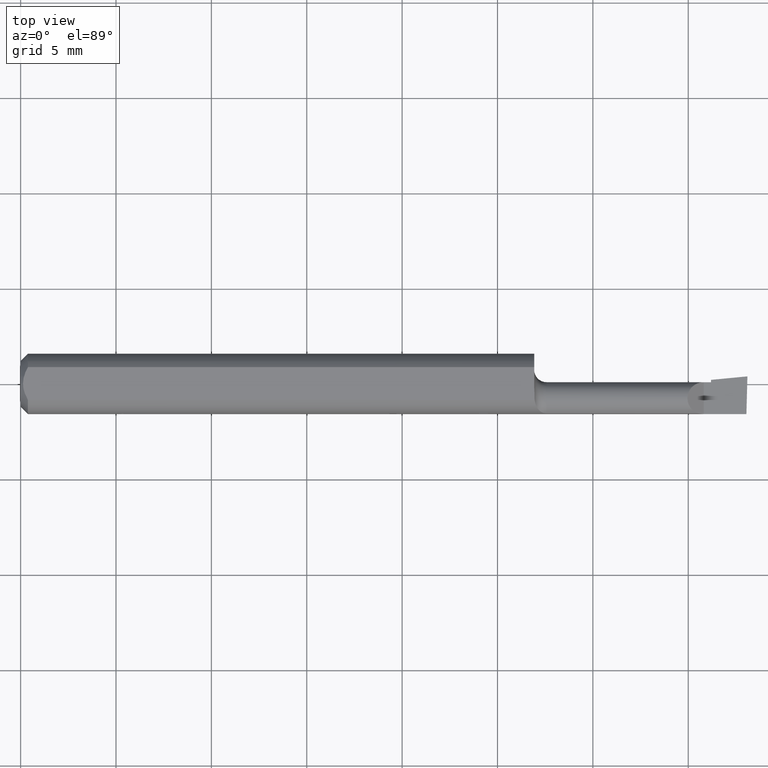
[diagram: clean part render]
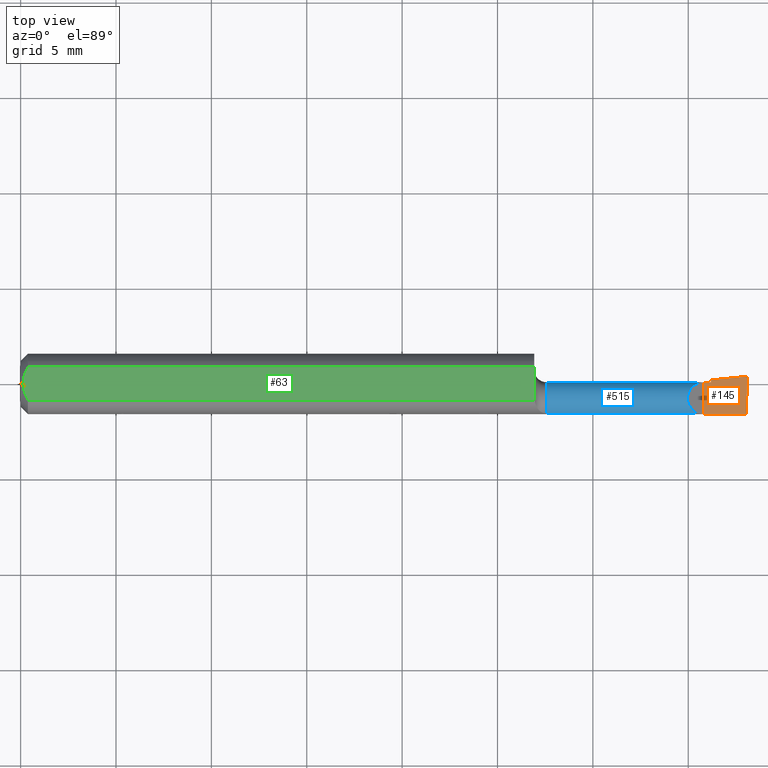
[diagram: same view with three faces highlighted in distinct colors, each labeled with its STEP entity id]
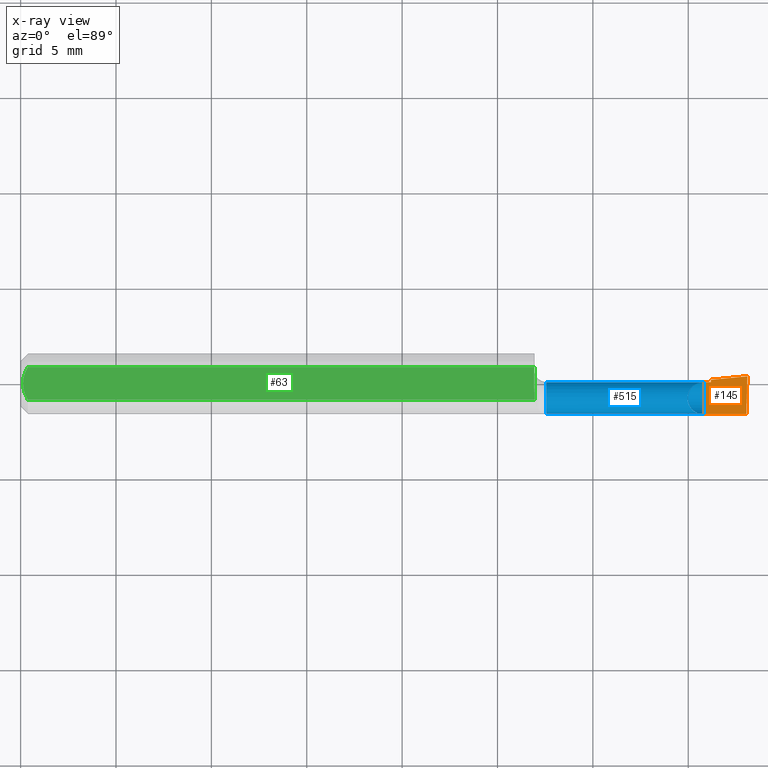
[diagram: x-ray of the same camera — body ghosted, the three highlighted faces saturated]
A machine part, top view with three faces highlighted in distinct colors.
The next image is the same camera in x-ray (body ghosted, the three faces saturated) — at least one of them is partly hidden behind the body in this view.
Their STEP definitions:

[orange] entity #145 — the highlighted planar face has unit normal (-0, 0, -1).
#12 = CARTESIAN_POINT ( 'NONE',  ( 1.500000000000000222, -0.2500000000000000555, 0.0000000000000000000 ) ) ;
#28 = ORIENTED_EDGE ( 'NONE', *, *, #433, .F. ) ;
#35 = VECTOR ( 'NONE', #580, 39.37007874015748854 ) ;
#45 = VERTEX_POINT ( 'NONE', #581 ) ;
#58 = ORIENTED_EDGE ( 'NONE', *, *, #415, .F. ) ;
#71 = DIRECTION ( 'NONE',  ( -0.9953961983671800740, -0.09584575252021027003, 1.242092384877204530E-16 ) ) ;
#76 = CARTESIAN_POINT ( 'NONE',  ( 1.409999999999999920, -0.2500000000000000555, 1.102182119232617911E-17 ) ) ;
#87 = VECTOR ( 'NONE', #508, 39.37007874015748143 ) ;
#144 = DIRECTION ( 'NONE',  ( -1.000000000000000000, 0.0000000000000000000, 1.224646799147351728E-16 ) ) ;
#145 = ADVANCED_FACE ( 'NONE', ( #562 ), #233, .F. ) ;
#147 = EDGE_LOOP ( 'NONE', ( #28, #285, #546, #271, #202, #58 ) ) ;
#158 = CARTESIAN_POINT ( 'NONE',  ( 1.425000000000000266, -0.2500000000000000555, 9.184850993605122553E-18 ) ) ;
#169 = CARTESIAN_POINT ( 'NONE',  ( 2.249639673992780117E-32, -0.06234999999999999570, 1.836970198721026976E-16 ) ) ;
#174 = VERTEX_POINT ( 'NONE', #361 ) ;
#194 = VECTOR ( 'NONE', #491, 39.37007874015748143 ) ;
#202 = ORIENTED_EDGE ( 'NONE', *, *, #364, .F. ) ;
#227 = CARTESIAN_POINT ( 'NONE',  ( 1.409999999999999920, -0.06235000000000005121, 1.102182119232617911E-17 ) ) ;
#233 = PLANE ( 'NONE',  #549 ) ;
#271 = ORIENTED_EDGE ( 'NONE', *, *, #295, .F. ) ;
#285 = ORIENTED_EDGE ( 'NONE', *, *, #477, .T. ) ;
#295 = EDGE_CURVE ( 'NONE', #322, #483, #402, .T. ) ;
#299 = CARTESIAN_POINT ( 'NONE',  ( 9.575696352794166315E-20, 0.003649999999999977481, 1.836970198721026976E-16 ) ) ;
#306 = VERTEX_POINT ( 'NONE', #474 ) ;
#322 = VERTEX_POINT ( 'NONE', #555 ) ;
#346 = CARTESIAN_POINT ( 'NONE',  ( 1.425000000000000266, 0.008428321385185622017, 1.835460370743176819E-16 ) ) ;
#355 = VECTOR ( 'NONE', #71, 39.37007874015748854 ) ;
#361 = CARTESIAN_POINT ( 'NONE',  ( 1.497957498117606479, -0.06235000000000005121, 1.791754701920804801E-19 ) ) ;
#364 = EDGE_CURVE ( 'NONE', #306, #322, #550, .T. ) ;
#377 = EDGE_CURVE ( 'NONE', #45, #483, #482, .T. ) ;
#383 = CARTESIAN_POINT ( 'NONE',  ( 1.474655795189113938, 0.01320963064143659479, 3.103769929858641008E-18 ) ) ;
#402 = LINE ( 'NONE', #158, #87 ) ;
#414 = DIRECTION ( 'NONE',  ( -1.224646799147351728E-16, 0.0000000000000000000, -1.000000000000000000 ) ) ;
#415 = EDGE_CURVE ( 'NONE', #572, #306, #569, .T. ) ;
#423 = LINE ( 'NONE', #487, #35 ) ;
#433 = EDGE_CURVE ( 'NONE', #174, #572, #457, .T. ) ;
#452 = VECTOR ( 'NONE', #566, 39.37007874015748143 ) ;
#457 = LINE ( 'NONE', #169, #194 ) ;
#474 = CARTESIAN_POINT ( 'NONE',  ( 1.409999999999999920, 0.003649999999999939317, 1.102182119232617911E-17 ) ) ;
#477 = EDGE_CURVE ( 'NONE', #174, #45, #423, .T. ) ;
#482 = LINE ( 'NONE', #383, #355 ) ;
#483 = VERTEX_POINT ( 'NONE', #346 ) ;
#487 = CARTESIAN_POINT ( 'NONE',  ( 1.493048476612020448, -0.2498179679537755049, 8.513160866287305864E-19 ) ) ;
#491 = DIRECTION ( 'NONE',  ( -1.000000000000000000, -0.0000000000000000000, -0.0000000000000000000 ) ) ;
#508 = DIRECTION ( 'NONE',  ( 2.845674993400274571E-18, 1.000000000000000000, -3.484946772081307763E-34 ) ) ;
#518 = VECTOR ( 'NONE', #527, 39.37007874015748143 ) ;
#527 = DIRECTION ( 'NONE',  ( 1.000000000000000000, -2.845674993400274571E-18, 0.0000000000000000000 ) ) ;
#546 = ORIENTED_EDGE ( 'NONE', *, *, #377, .T. ) ;
#549 = AXIS2_PLACEMENT_3D ( 'NONE', #12, #414, #144 ) ;
#550 = LINE ( 'NONE', #299, #518 ) ;
#555 = CARTESIAN_POINT ( 'NONE',  ( 1.425000000000000266, 0.003649999999999994828, 1.836970198721028208E-16 ) ) ;
#562 = FACE_OUTER_BOUND ( 'NONE', #147, .T. ) ;
#566 = DIRECTION ( 'NONE',  ( -0.0000000000000000000, 1.000000000000000000, -0.0000000000000000000 ) ) ;
#569 = LINE ( 'NONE', #76, #452 ) ;
#572 = VERTEX_POINT ( 'NONE', #227 ) ;
#580 = DIRECTION ( 'NONE',  ( 0.02617694830794567093, 0.9996573249755552615, -3.584133854804236655E-18 ) ) ;
#581 = CARTESIAN_POINT ( 'NONE',  ( 1.500000000000008660, 0.01565000000000079522, 1.835460370743176819E-16 ) ) ;

[blue] entity #515 — the highlighted cylindrical surface (edge-blend (fillet) strip) has radius 0.8547 mm, axis along (-1, 0, -0).
#3 = EDGE_CURVE ( 'NONE', #322, #323, #242, .T. ) ;
#13 = AXIS2_PLACEMENT_3D ( 'NONE', #529, #344, #86 ) ;
#16 = CYLINDRICAL_SURFACE ( 'NONE', #392, 0.03364999999999997854 ) ;
#30 = EDGE_CURVE ( 'NONE', #439, #323, #461, .T. ) ;
#36 = CARTESIAN_POINT ( 'NONE',  ( 1.363008094618844535, 0.003649999999999974879, 0.04699190538115510102 ) ) ;
#37 = CARTESIAN_POINT ( 'NONE',  ( 1.496364186706980792, -0.06092000000000002968, -0.01327690099383122685 ) ) ;
#41 = CARTESIAN_POINT ( 'NONE',  ( 1.422734132366857862, -0.006115384616088629516, -0.02372927357351955688 ) ) ;
#44 = CARTESIAN_POINT ( 'NONE',  ( 1.396723099006168756, -0.06092000000000002968, 0.01327690099383124073 ) ) ;
#56 = ORIENTED_EDGE ( 'NONE', *, *, #514, .F. ) ;
#78 = FACE_OUTER_BOUND ( 'NONE', #133, .T. ) ;
#84 = CARTESIAN_POINT ( 'NONE',  ( 1.494942300338901298, -0.05544825464842374069, -0.02601981188465945019 ) ) ;
#86 = DIRECTION ( 'NONE',  ( 0.0000000000000000000, -1.000000000000000000, 0.0000000000000000000 ) ) ;
#90 = VERTEX_POINT ( 'NONE', #172 ) ;
#91 = CARTESIAN_POINT ( 'NONE',  ( 1.422808130611181054, -0.006922796484204020787, -0.02449010367251484854 ) ) ;
#94 = EDGE_CURVE ( 'NONE', #541, #306, #191, .T. ) ;
#104 = ORIENTED_EDGE ( 'NONE', *, *, #505, .T. ) ;
#108 = ORIENTED_EDGE ( 'NONE', *, *, #364, .T. ) ;
#121 = EDGE_CURVE ( 'NONE', #329, #541, #335, .T. ) ;
#129 = CARTESIAN_POINT ( 'NONE',  ( 1.423453955186838593, -0.005345927311154015198, -0.02292882422404280210 ) ) ;
#133 = EDGE_LOOP ( 'NONE', ( #214, #432, #56, #558, #504, #108, #238, #288 ) ) ;
#136 = VERTEX_POINT ( 'NONE', #502 ) ;
#170 = LINE ( 'NONE', #245, #459 ) ;
#172 = CARTESIAN_POINT ( 'NONE',  ( 1.422808130611181054, -0.006922796484204020787, -0.02449010367251484854 ) ) ;
#173 = CARTESIAN_POINT ( 'NONE',  ( 1.494671495890090407, -0.02999999999999999889, -0.03365000000000000629 ) ) ;
#191 =( BOUNDED_CURVE ( )  B_SPLINE_CURVE ( 3, ( #579, #308, #36, #264 ),
 .UNSPECIFIED., .F., .F. ) 
 B_SPLINE_CURVE_WITH_KNOTS ( ( 4, 4 ),
 ( 5.117976542370898940, 7.853981633974482790 ),
 .UNSPECIFIED. ) 
 CURVE ( )  GEOMETRIC_REPRESENTATION_ITEM ( )  RATIONAL_B_SPLINE_CURVE ( ( 1.000000000000000000, 0.4676044288551156614, 0.4676044288551156614, 1.000000000000000000 ) ) 
 REPRESENTATION_ITEM ( '' )  );
#205 = B_SPLINE_CURVE_WITH_KNOTS ( 'NONE', 3,
 ( #399, #311, #41, #353 ),
 .UNSPECIFIED., .F., .F.,
 ( 4, 4 ),
 ( 0.0000000000000000000, 1.000000000000000000 ),
 .UNSPECIFIED. ) ;
#214 = ORIENTED_EDGE ( 'NONE', *, *, #445, .F. ) ;
#219 = CARTESIAN_POINT ( 'NONE',  ( 1.494308349198229635, -0.04386801266094339513, -0.03364999999999997160 ) ) ;
#238 = ORIENTED_EDGE ( 'NONE', *, *, #3, .T. ) ;
#242 = CIRCLE ( 'NONE', #300, 0.03364999999999999936 ) ;
#245 = CARTESIAN_POINT ( 'NONE',  ( 1.255000000000000115, -0.06092000000000002968, -0.01327690099383122685 ) ) ;
#257 = VERTEX_POINT ( 'NONE', #370 ) ;
#258 = EDGE_LOOP ( 'NONE', ( #532, #104 ) ) ;
#264 = CARTESIAN_POINT ( 'NONE',  ( 1.409999999999999920, 0.003649999999999939317, 1.102182119232617911E-17 ) ) ;
#265 = EDGE_CURVE ( 'NONE', #136, #391, #170, .T. ) ;
#267 = DIRECTION ( 'NONE',  ( -2.845674993400274571E-18, -1.000000000000000000, 0.0000000000000000000 ) ) ;
#272 = CARTESIAN_POINT ( 'NONE',  ( 1.500000000000000222, -0.02999999999999999889, -0.03365000000000000629 ) ) ;
#277 = DIRECTION ( 'NONE',  ( 1.000000000000000000, -2.845674993400274571E-18, 0.0000000000000000000 ) ) ;
#279 = CARTESIAN_POINT ( 'NONE',  ( 1.255000000000000115, -0.06092000000000002968, 0.01327690099383122685 ) ) ;
#288 = ORIENTED_EDGE ( 'NONE', *, *, #30, .F. ) ;
#290 = CARTESIAN_POINT ( 'NONE',  ( 1.425000000000000266, -0.02999999999999999889, -0.03365000000000000629 ) ) ;
#293 = DIRECTION ( 'NONE',  ( -1.000000000000000000, 2.845674993400274571E-18, -0.0000000000000000000 ) ) ;
#294 =( BOUNDED_CURVE ( )  B_SPLINE_CURVE ( 3, ( #395, #129, #493, #91 ),
 .UNSPECIFIED., .F., .F. ) 
 B_SPLINE_CURVE_WITH_KNOTS ( ( 4, 4 ),
 ( 3.087527693676584750, 3.186434404596884651 ),
 .UNSPECIFIED. ) 
 CURVE ( )  GEOMETRIC_REPRESENTATION_ITEM ( )  RATIONAL_B_SPLINE_CURVE ( ( 1.000000000000000000, 0.9991849546734631327, 0.9991849546734631327, 1.000000000000000000 ) ) 
 REPRESENTATION_ITEM ( '' )  );
#297 = CARTESIAN_POINT ( 'NONE',  ( 1.085000000000000187, -0.06092000000000011989, 0.01327690099383098572 ) ) ;
#299 = CARTESIAN_POINT ( 'NONE',  ( 9.575696352794166315E-20, 0.003649999999999977481, 1.836970198721026976E-16 ) ) ;
#300 = AXIS2_PLACEMENT_3D ( 'NONE', #537, #490, #540 ) ;
#302 = CARTESIAN_POINT ( 'NONE',  ( 1.085000000000000187, -0.06092000000000008519, -0.01327690099383104991 ) ) ;
#306 = VERTEX_POINT ( 'NONE', #474 ) ;
#308 = CARTESIAN_POINT ( 'NONE',  ( 1.353543612694569021, -0.04237893387051779037, 0.05645638730543054568 ) ) ;
#309 = CARTESIAN_POINT ( 'NONE',  ( 1.494671495890090407, -0.02999999999999999889, -0.03365000000000000629 ) ) ;
#311 = CARTESIAN_POINT ( 'NONE',  ( 1.422660134122533337, -0.005345630279323702709, -0.02292848294241266877 ) ) ;
#320 =( BOUNDED_CURVE ( )  B_SPLINE_CURVE ( 3, ( #37, #84, #219, #173 ),
 .UNSPECIFIED., .F., .T. ) 
 B_SPLINE_CURVE_WITH_KNOTS ( ( 4, 4 ),
 ( 5.328025986651549140, 6.493234751460234655 ),
 .UNSPECIFIED. ) 
 CURVE ( )  GEOMETRIC_REPRESENTATION_ITEM ( )  RATIONAL_B_SPLINE_CURVE ( ( 1.000000000000000000, 0.8900217005663144665, 0.8900217005663144665, 1.000000000000000000 ) ) 
 REPRESENTATION_ITEM ( '' )  );
#322 = VERTEX_POINT ( 'NONE', #555 ) ;
#323 = VERTEX_POINT ( 'NONE', #290 ) ;
#329 = VERTEX_POINT ( 'NONE', #297 ) ;
#335 = LINE ( 'NONE', #279, #563 ) ;
#344 = DIRECTION ( 'NONE',  ( -1.000000000000000000, 2.845674993400274571E-18, -0.0000000000000000000 ) ) ;
#347 = CARTESIAN_POINT ( 'NONE',  ( 0.0000000000000000000, -0.02999999999999999542, 0.0000000000000000000 ) ) ;
#353 = CARTESIAN_POINT ( 'NONE',  ( 1.422808130611181054, -0.006922796484204020787, -0.02449010367251484854 ) ) ;
#363 = CIRCLE ( 'NONE', #13, 0.03364999999999995772 ) ;
#364 = EDGE_CURVE ( 'NONE', #306, #322, #550, .T. ) ;
#370 = CARTESIAN_POINT ( 'NONE',  ( 1.422586135878206814, -0.004617293032567721701, -0.02209164292227844967 ) ) ;
#391 = VERTEX_POINT ( 'NONE', #302 ) ;
#392 = AXIS2_PLACEMENT_3D ( 'NONE', #347, #397, #267 ) ;
#395 = CARTESIAN_POINT ( 'NONE',  ( 1.422586135878206814, -0.004617293032567721701, -0.02209164292227844967 ) ) ;
#397 = DIRECTION ( 'NONE',  ( -1.000000000000000000, 2.845674993400274571E-18, -0.0000000000000000000 ) ) ;
#399 = CARTESIAN_POINT ( 'NONE',  ( 1.422586135878206814, -0.004617293032567721701, -0.02209164292227844967 ) ) ;
#432 = ORIENTED_EDGE ( 'NONE', *, *, #265, .T. ) ;
#439 = VERTEX_POINT ( 'NONE', #309 ) ;
#445 = EDGE_CURVE ( 'NONE', #136, #439, #320, .T. ) ;
#453 = VECTOR ( 'NONE', #533, 39.37007874015748143 ) ;
#459 = VECTOR ( 'NONE', #293, 39.37007874015748143 ) ;
#461 = LINE ( 'NONE', #272, #453 ) ;
#474 = CARTESIAN_POINT ( 'NONE',  ( 1.409999999999999920, 0.003649999999999939317, 1.102182119232617911E-17 ) ) ;
#486 = EDGE_CURVE ( 'NONE', #257, #90, #294, .T. ) ;
#490 = DIRECTION ( 'NONE',  ( -1.000000000000000000, 2.845674993400274571E-18, -0.0000000000000000000 ) ) ;
#493 = CARTESIAN_POINT ( 'NONE',  ( 1.423528013792283442, -0.006115055335901491834, -0.02372896329039483540 ) ) ;
#502 = CARTESIAN_POINT ( 'NONE',  ( 1.496364186706980792, -0.06092000000000002968, -0.01327690099383122685 ) ) ;
#504 = ORIENTED_EDGE ( 'NONE', *, *, #94, .T. ) ;
#505 = EDGE_CURVE ( 'NONE', #257, #90, #205, .T. ) ;
#514 = EDGE_CURVE ( 'NONE', #329, #391, #363, .T. ) ;
#515 = ADVANCED_FACE ( 'NONE', ( #78, #530 ), #16, .T. ) ;
#518 = VECTOR ( 'NONE', #527, 39.37007874015748143 ) ;
#527 = DIRECTION ( 'NONE',  ( 1.000000000000000000, -2.845674993400274571E-18, 0.0000000000000000000 ) ) ;
#529 = CARTESIAN_POINT ( 'NONE',  ( 1.085000000000000187, -0.02999999999999999889, 0.0000000000000000000 ) ) ;
#530 = FACE_BOUND ( 'NONE', #258, .T. ) ;
#532 = ORIENTED_EDGE ( 'NONE', *, *, #486, .F. ) ;
#533 = DIRECTION ( 'NONE',  ( -1.000000000000000000, 5.691349986800548372E-18, -0.0000000000000000000 ) ) ;
#537 = CARTESIAN_POINT ( 'NONE',  ( 1.425000000000000266, -0.02999999999999999889, 0.0000000000000000000 ) ) ;
#540 = DIRECTION ( 'NONE',  ( 0.0000000000000000000, -1.000000000000000000, 0.0000000000000000000 ) ) ;
#541 = VERTEX_POINT ( 'NONE', #44 ) ;
#550 = LINE ( 'NONE', #299, #518 ) ;
#555 = CARTESIAN_POINT ( 'NONE',  ( 1.425000000000000266, 0.003649999999999994828, 1.836970198721028208E-16 ) ) ;
#558 = ORIENTED_EDGE ( 'NONE', *, *, #121, .T. ) ;
#563 = VECTOR ( 'NONE', #277, 39.37007874015748143 ) ;
#579 = CARTESIAN_POINT ( 'NONE',  ( 1.396723099006168756, -0.06092000000000002968, 0.01327690099383124073 ) ) ;

[green] entity #63 — the highlighted planar face has unit normal (0, -0, -1).
#8 = CARTESIAN_POINT ( 'NONE',  ( 0.006057557792978140489, -0.01187252718384441616, 0.05234999999999998682 ) ) ;
#11 = CARTESIAN_POINT ( 'NONE',  ( 1.060770118751884317, -0.03386738844373782253, 0.05235000000000000070 ) ) ;
#18 = ORIENTED_EDGE ( 'NONE', *, *, #421, .F. ) ;
#19 = ORIENTED_EDGE ( 'NONE', *, *, #198, .F. ) ;
#24 = B_SPLINE_CURVE_WITH_KNOTS ( 'NONE', 3,
 ( #500, #356, #321, #95, #406, #11 ),
 .UNSPECIFIED., .F., .F.,
 ( 4, 2, 4 ),
 ( 2.951825381264365662E-05, 0.0004145759864934283755, 0.0007996337191742130266 ),
 .UNSPECIFIED. ) ;
#31 = CARTESIAN_POINT ( 'NONE',  ( 1.060000000000000275, 0.03386738844375224156, 0.05235000000000000070 ) ) ;
#39 = CARTESIAN_POINT ( 'NONE',  ( 1.500000000000000222, 0.1123499999999999915, 0.05234999999999998682 ) ) ;
#54 = VECTOR ( 'NONE', #473, 39.37007874015748143 ) ;
#63 = ADVANCED_FACE ( 'NONE', ( #72 ), #352, .F. ) ;
#66 = CARTESIAN_POINT ( 'NONE',  ( 1.060770118751884317, -0.03386738844373782253, 0.05235000000000000070 ) ) ;
#72 = FACE_OUTER_BOUND ( 'NONE', #509, .T. ) ;
#83 = DIRECTION ( 'NONE',  ( 0.0000000000000000000, -7.598598113218357399E-17, -1.000000000000000000 ) ) ;
#88 = ORIENTED_EDGE ( 'NONE', *, *, #150, .F. ) ;
#95 = CARTESIAN_POINT ( 'NONE',  ( 1.060746490741564241, -0.02375524936241533991, 0.05234999999999998682 ) ) ;
#102 = CARTESIAN_POINT ( 'NONE',  ( 0.0000000000000000000, -0.03386738844375222768, 0.05234999999999997988 ) ) ;
#110 = VECTOR ( 'NONE', #526, 39.37007874015748143 ) ;
#115 = B_SPLINE_CURVE_WITH_KNOTS ( 'NONE', 3,
 ( #495, #183, #543, #138, #362, #407 ),
 .UNSPECIFIED., .F., .F.,
 ( 4, 2, 4 ),
 ( 0.003037199019464981685, 0.003488061124369676216, 0.003938923229274370746 ),
 .UNSPECIFIED. ) ;
#126 = CARTESIAN_POINT ( 'NONE',  ( 1.060000000000000275, -0.003555718954753289696, 0.05235000000000000070 ) ) ;
#138 = CARTESIAN_POINT ( 'NONE',  ( 0.009669996313769784607, 0.02323004575534281385, 0.05234999999999998682 ) ) ;
#150 = EDGE_CURVE ( 'NONE', #340, #312, #481, .T. ) ;
#163 = LINE ( 'NONE', #102, #54 ) ;
#180 = DIRECTION ( 'NONE',  ( -2.845674993400274571E-18, -1.000000000000000000, 7.598598113218357399E-17 ) ) ;
#182 = CARTESIAN_POINT ( 'NONE',  ( 0.009678036133109307534, -0.02325481837211496039, 0.05235000000000000070 ) ) ;
#183 = CARTESIAN_POINT ( 'NONE',  ( 0.004999999999999268051, 0.005945714695019511074, 0.05235000000000000070 ) ) ;
#185 = CARTESIAN_POINT ( 'NONE',  ( 0.004999999999989931769, 7.898418181085889318E-16, 0.05235000000000000070 ) ) ;
#187 = EDGE_CURVE ( 'NONE', #448, #254, #24, .T. ) ;
#198 = EDGE_CURVE ( 'NONE', #254, #340, #163, .T. ) ;
#208 = CARTESIAN_POINT ( 'NONE',  ( 0.01500000000000000465, 0.03386738844375223462, 0.05234999999999997988 ) ) ;
#226 = LINE ( 'NONE', #565, #110 ) ;
#235 = LINE ( 'NONE', #274, #431 ) ;
#254 = VERTEX_POINT ( 'NONE', #66 ) ;
#274 = CARTESIAN_POINT ( 'NONE',  ( 1.060000000000000275, 0.1123499999999999915, 0.05234999999999998682 ) ) ;
#275 = CARTESIAN_POINT ( 'NONE',  ( 0.01216137397042175820, -0.02864146636719541034, 0.05235000000000000070 ) ) ;
#289 = ORIENTED_EDGE ( 'NONE', *, *, #536, .F. ) ;
#312 = VERTEX_POINT ( 'NONE', #513 ) ;
#319 = CARTESIAN_POINT ( 'NONE',  ( 0.01500000000000185213, -0.03386738844380016850, 0.05235000000000000070 ) ) ;
#321 = CARTESIAN_POINT ( 'NONE',  ( 1.060303160474311390, -0.01365768250280466507, 0.05235000000000000070 ) ) ;
#334 = AXIS2_PLACEMENT_3D ( 'NONE', #39, #83, #534 ) ;
#340 = VERTEX_POINT ( 'NONE', #388 ) ;
#352 = PLANE ( 'NONE',  #334 ) ;
#356 = CARTESIAN_POINT ( 'NONE',  ( 1.060000000000000275, -0.008611455327202423640, 0.05235000000000000070 ) ) ;
#360 = ORIENTED_EDGE ( 'NONE', *, *, #187, .F. ) ;
#362 = CARTESIAN_POINT ( 'NONE',  ( 0.01218518006020415795, 0.02868529347538067639, 0.05235000000000000070 ) ) ;
#388 = CARTESIAN_POINT ( 'NONE',  ( 0.01500000000000185213, -0.03386738844380016850, 0.05235000000000000070 ) ) ;
#404 = VERTEX_POINT ( 'NONE', #31 ) ;
#406 = CARTESIAN_POINT ( 'NONE',  ( 1.060864870788666314, -0.02880649294741972899, 0.05235000000000000070 ) ) ;
#407 = CARTESIAN_POINT ( 'NONE',  ( 0.01500000000000000465, 0.03386738844375223462, 0.05234999999999997988 ) ) ;
#421 = EDGE_CURVE ( 'NONE', #463, #404, #226, .T. ) ;
#431 = VECTOR ( 'NONE', #180, 39.37007874015748143 ) ;
#448 = VERTEX_POINT ( 'NONE', #126 ) ;
#458 = CARTESIAN_POINT ( 'NONE',  ( 0.004999999999998879473, -0.005957634400466955450, 0.05235000000000000070 ) ) ;
#463 = VERTEX_POINT ( 'NONE', #208 ) ;
#467 = ORIENTED_EDGE ( 'NONE', *, *, #561, .F. ) ;
#473 = DIRECTION ( 'NONE',  ( -1.000000000000000000, -0.0000000000000000000, -0.0000000000000000000 ) ) ;
#481 = B_SPLINE_CURVE_WITH_KNOTS ( 'NONE', 3,
 ( #319, #275, #182, #8, #458, #185 ),
 .UNSPECIFIED., .F., .F.,
 ( 4, 2, 4 ),
 ( 0.002133667072902290657, 0.002585433046183636171, 0.003037199019464981685 ),
 .UNSPECIFIED. ) ;
#495 = CARTESIAN_POINT ( 'NONE',  ( 0.004999999999989931769, 7.898418181085889318E-16, 0.05235000000000000070 ) ) ;
#500 = CARTESIAN_POINT ( 'NONE',  ( 1.060000000000000275, -0.003555718954753289696, 0.05235000000000000070 ) ) ;
#509 = EDGE_LOOP ( 'NONE', ( #360, #467, #18, #289, #88, #19 ) ) ;
#513 = CARTESIAN_POINT ( 'NONE',  ( 0.004999999999989931769, 7.898418181085889318E-16, 0.05235000000000000070 ) ) ;
#526 = DIRECTION ( 'NONE',  ( 1.000000000000000000, 0.0000000000000000000, 0.0000000000000000000 ) ) ;
#534 = DIRECTION ( 'NONE',  ( 0.0000000000000000000, 1.000000000000000000, -7.598598113218357399E-17 ) ) ;
#536 = EDGE_CURVE ( 'NONE', #312, #463, #115, .T. ) ;
#543 = CARTESIAN_POINT ( 'NONE',  ( 0.006064493299689842180, 0.01189382783781397189, 0.05235000000000000070 ) ) ;
#561 = EDGE_CURVE ( 'NONE', #404, #448, #235, .T. ) ;
#565 = CARTESIAN_POINT ( 'NONE',  ( 0.0000000000000000000, 0.03386738844375223462, 0.05234999999999997988 ) ) ;